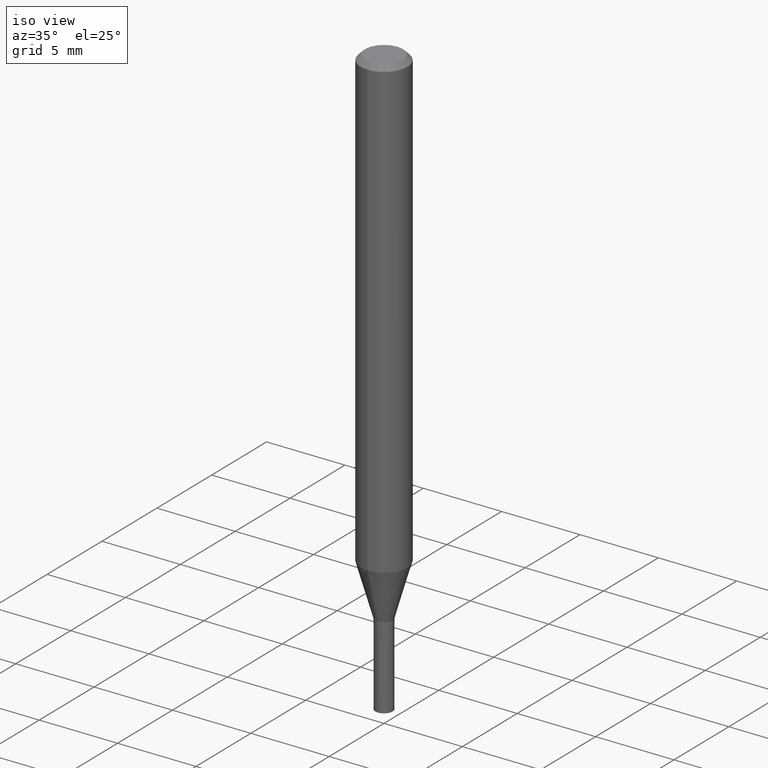
[diagram: clean part render]
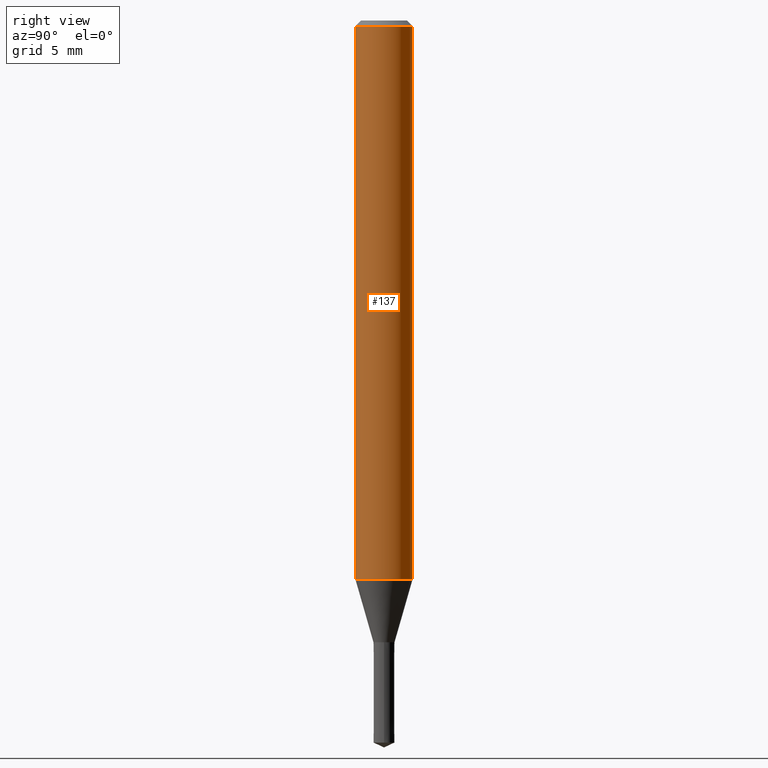
[diagram: tour spotlight — one face highlighted and labeled with its STEP entity id]
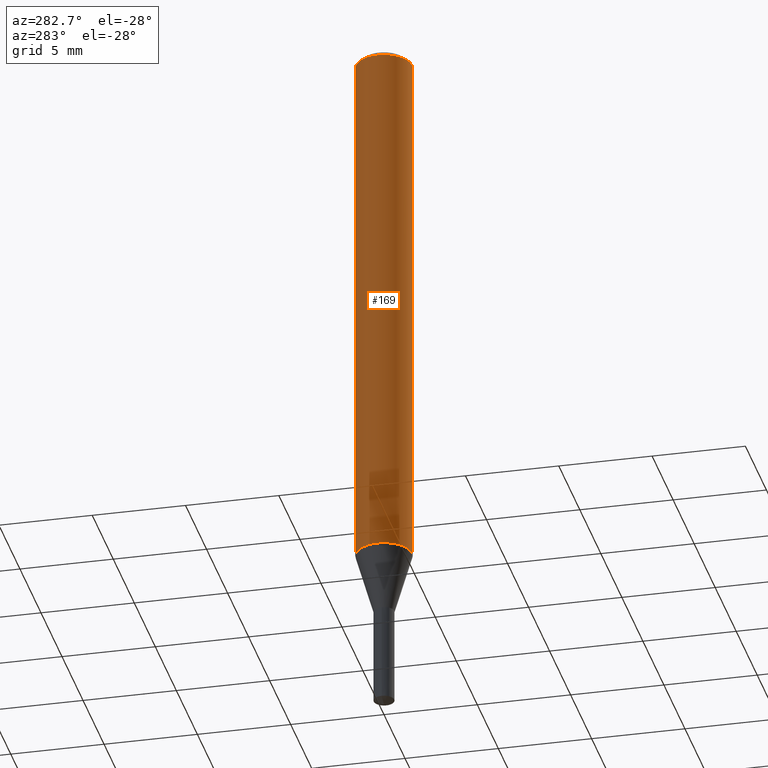
[diagram: tour spotlight — one face highlighted and labeled with its STEP entity id]
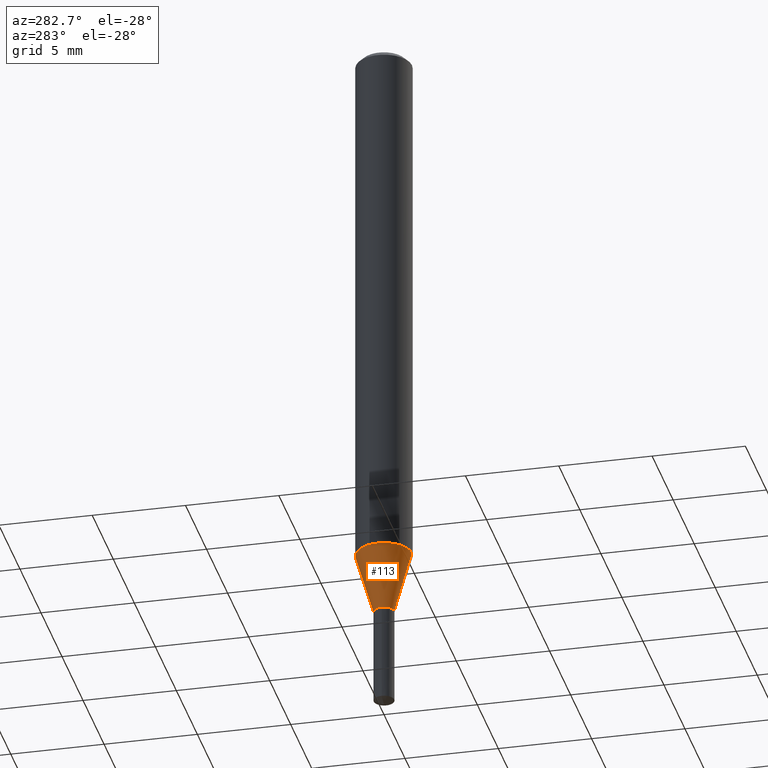
[diagram: tour spotlight — one face highlighted and labeled with its STEP entity id]
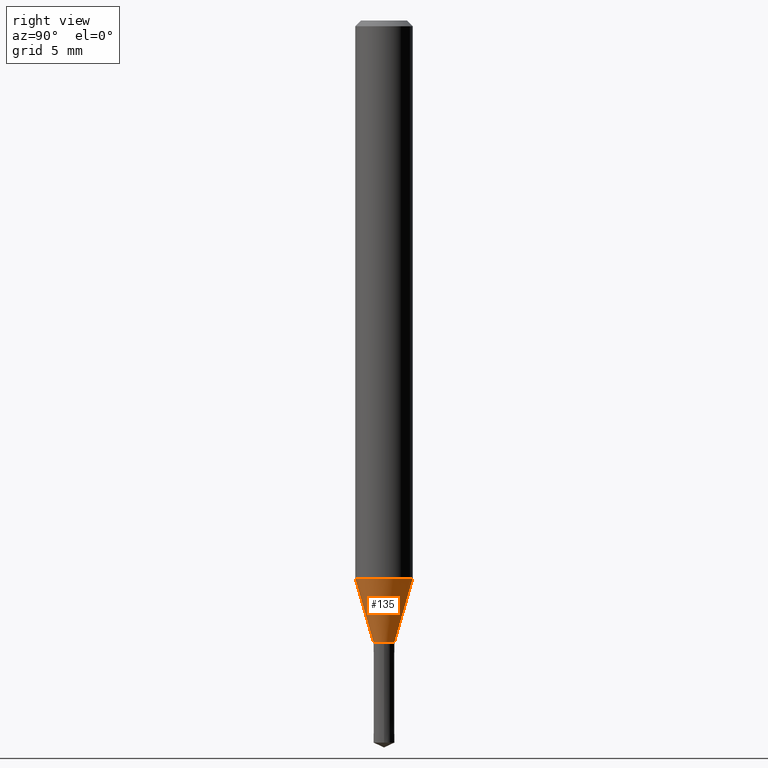
[diagram: tour spotlight — one face highlighted and labeled with its STEP entity id]
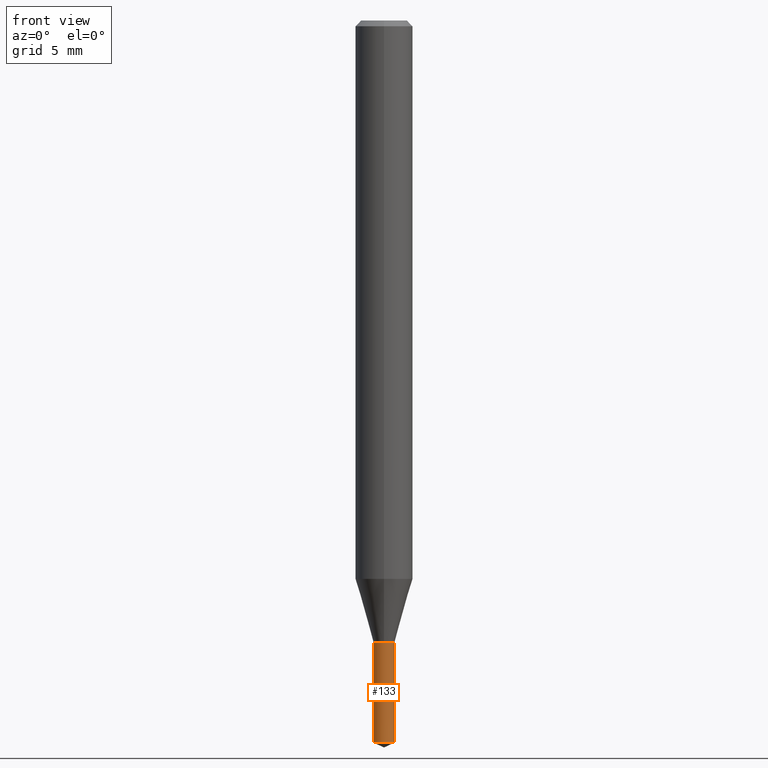
[diagram: tour spotlight — one face highlighted and labeled with its STEP entity id]
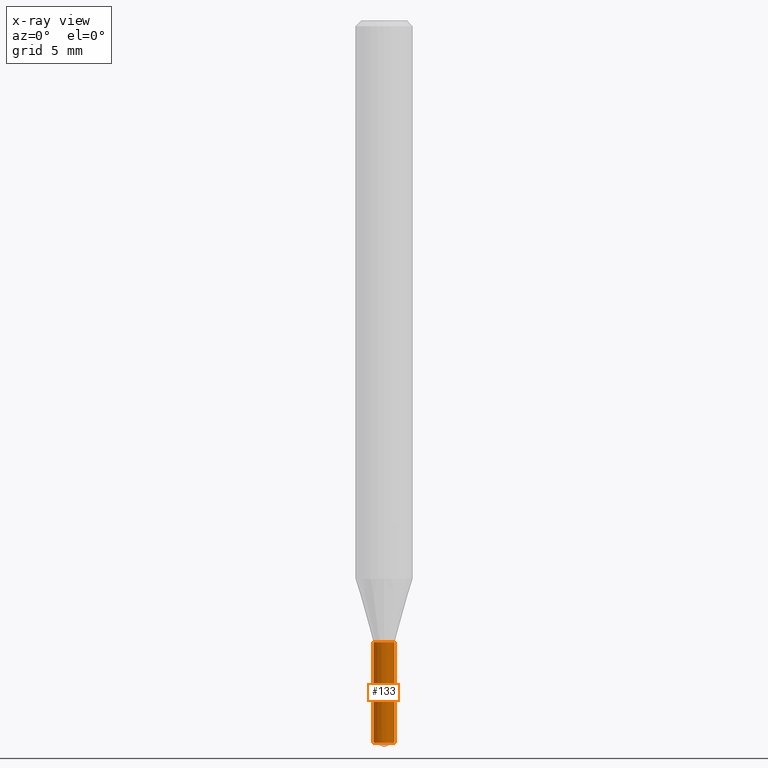
[diagram: x-ray of the same camera — body ghosted, this tour face saturated]
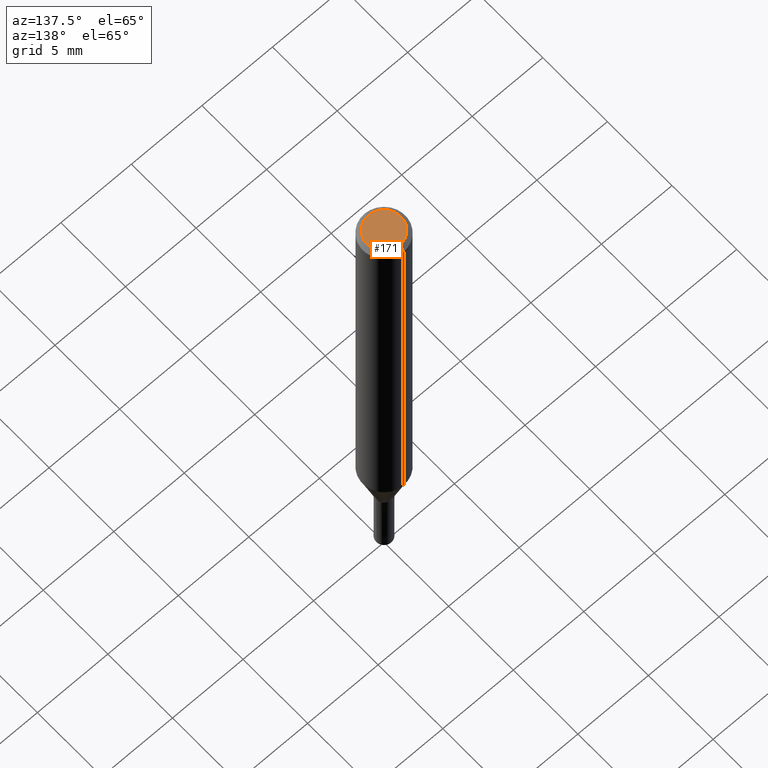
[diagram: tour spotlight — one face highlighted and labeled with its STEP entity id]
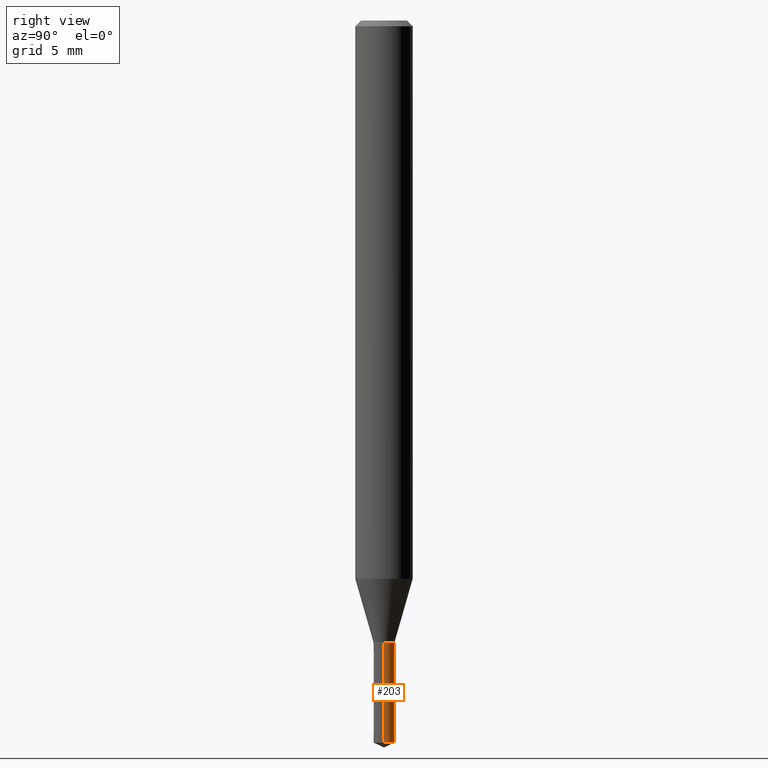
[diagram: tour spotlight — one face highlighted and labeled with its STEP entity id]
A machine part: a face-by-face anatomy tour. The part has 15 B-rep faces; the first image is the clean iso view, then the 7 largest visible faces are spotlighted one at a time (largest first), each with its STEP entity span.

Face 1 — right view, entity #137. In plain terms, the highlighted cylindrical surface (edge-blend (fillet) strip) has radius 1.5 mm, axis along (-0, -0, 1).
Definition (entity closure, byte-faithful):
#95=VERTEX_POINT('',#231);
#99=VERTEX_POINT('',#235);
#107=EDGE_CURVE('',#201,#99,#244,.T.);
#131=VERTEX_POINT('',#272);
#137=ADVANCED_FACE('',(#280),#281,.T.);
#151=EDGE_CURVE('',#95,#131,#295,.T.);
#161=EDGE_CURVE('',#95,#201,#306,.T.);
#191=EDGE_CURVE('',#99,#131,#340,.T.);
#201=VERTEX_POINT('',#350);
#231=CARTESIAN_POINT('',(0.0,1.5,-0.300000000000001));
#235=CARTESIAN_POINT('',(1.83690953073357E-016,-1.5,-29.187));
#244=CIRCLE('',#391,1.5);
#272=CARTESIAN_POINT('',(1.83690953073357E-016,-1.5,-0.300000000000001));
#280=FACE_OUTER_BOUND('',#431,.T.);
#281=CYLINDRICAL_SURFACE('',#432,1.5);
#295=CIRCLE('',#452,1.5);
#306=LINE('',#467,#468);
#340=LINE('',#508,#509);
#350=CARTESIAN_POINT('',(0.0,1.5,-29.187));
#391=AXIS2_PLACEMENT_3D('',#558,#559,#560);
#431=EDGE_LOOP('',(#614,#615,#616,#617));
#432=AXIS2_PLACEMENT_3D('',#618,#619,#620);
#452=AXIS2_PLACEMENT_3D('',#626,#627,#628);
#467=CARTESIAN_POINT('',(-1.83690953073357E-016,1.5,-14.7435));
#468=VECTOR('',#640,1.0);
#508=CARTESIAN_POINT('',(1.83690953073357E-016,-1.5,-14.7435));
#509=VECTOR('',#687,1.0);
#558=CARTESIAN_POINT('',(0.0,0.0,-29.187));
#559=DIRECTION('',(0.0,0.0,-1.0));
#560=DIRECTION('',(0.0,1.0,0.0));
#614=ORIENTED_EDGE('',*,*,#161,.F.);
#615=ORIENTED_EDGE('',*,*,#151,.T.);
#616=ORIENTED_EDGE('',*,*,#191,.F.);
#617=ORIENTED_EDGE('',*,*,#107,.F.);
#618=CARTESIAN_POINT('',(0.0,0.0,-14.7435));
#619=DIRECTION('',(-0.0,-0.0,1.0));
#620=DIRECTION('',(0.0,1.0,0.0));
#626=CARTESIAN_POINT('',(0.0,0.0,-0.300000000000001));
#627=DIRECTION('',(0.0,0.0,-1.0));
#628=DIRECTION('',(0.0,1.0,0.0));
#640=DIRECTION('',(0.0,0.0,-1.0));
#687=DIRECTION('',(-0.0,-0.0,1.0));

Face 2 — auxiliary view, entity #169. In plain terms, the highlighted cylindrical surface (edge-blend (fillet) strip) has radius 1.5 mm, axis along (-0, -0, 1).
Definition (entity closure, byte-faithful):
#95=VERTEX_POINT('',#231);
#99=VERTEX_POINT('',#235);
#131=VERTEX_POINT('',#272);
#141=EDGE_CURVE('',#99,#201,#285,.T.);
#161=EDGE_CURVE('',#95,#201,#306,.T.);
#169=ADVANCED_FACE('',(#315),#316,.T.);
#181=EDGE_CURVE('',#131,#95,#330,.T.);
#191=EDGE_CURVE('',#99,#131,#340,.T.);
#201=VERTEX_POINT('',#350);
#231=CARTESIAN_POINT('',(0.0,1.5,-0.300000000000001));
#235=CARTESIAN_POINT('',(1.83690953073357E-016,-1.5,-29.187));
#272=CARTESIAN_POINT('',(1.83690953073357E-016,-1.5,-0.300000000000001));
#285=CIRCLE('',#437,1.5);
#306=LINE('',#467,#468);
#315=FACE_OUTER_BOUND('',#478,.T.);
#316=CYLINDRICAL_SURFACE('',#479,1.5);
#330=CIRCLE('',#494,1.5);
#340=LINE('',#508,#509);
#350=CARTESIAN_POINT('',(0.0,1.5,-29.187));
#437=AXIS2_PLACEMENT_3D('',#621,#622,#623);
#467=CARTESIAN_POINT('',(-1.83690953073357E-016,1.5,-14.7435));
#468=VECTOR('',#640,1.0);
#478=EDGE_LOOP('',(#650,#651,#652,#653));
#479=AXIS2_PLACEMENT_3D('',#654,#655,#656);
#494=AXIS2_PLACEMENT_3D('',#675,#676,#677);
#508=CARTESIAN_POINT('',(1.83690953073357E-016,-1.5,-14.7435));
#509=VECTOR('',#687,1.0);
#621=CARTESIAN_POINT('',(0.0,0.0,-29.187));
#622=DIRECTION('',(0.0,0.0,-1.0));
#623=DIRECTION('',(0.0,1.0,0.0));
#640=DIRECTION('',(0.0,0.0,-1.0));
#650=ORIENTED_EDGE('',*,*,#161,.T.);
#651=ORIENTED_EDGE('',*,*,#141,.F.);
#652=ORIENTED_EDGE('',*,*,#191,.T.);
#653=ORIENTED_EDGE('',*,*,#181,.T.);
#654=CARTESIAN_POINT('',(0.0,0.0,-14.7435));
#655=DIRECTION('',(-0.0,-0.0,1.0));
#656=DIRECTION('',(0.0,1.0,0.0));
#675=CARTESIAN_POINT('',(0.0,0.0,-0.300000000000001));
#676=DIRECTION('',(0.0,0.0,-1.0));
#677=DIRECTION('',(0.0,1.0,0.0));
#687=DIRECTION('',(-0.0,-0.0,1.0));

Face 3 — auxiliary view, entity #113. In plain terms, the highlighted conical surface has half-angle 16.004 deg.
Definition (entity closure, byte-faithful):
#93=EDGE_CURVE('',#201,#127,#229,.T.);
#97=VERTEX_POINT('',#233);
#99=VERTEX_POINT('',#235);
#113=ADVANCED_FACE('',(#251),#252,.T.);
#119=EDGE_CURVE('',#97,#127,#258,.T.);
#127=VERTEX_POINT('',#267);
#141=EDGE_CURVE('',#99,#201,#285,.T.);
#193=EDGE_CURVE('',#97,#99,#342,.T.);
#201=VERTEX_POINT('',#350);
#229=LINE('',#372,#373);
#233=CARTESIAN_POINT('',(6.73533494602308E-017,-0.55,-32.4991339745962));
#235=CARTESIAN_POINT('',(1.83690953073357E-016,-1.5,-29.187));
#251=FACE_OUTER_BOUND('',#398,.T.);
#252=CONICAL_SURFACE('',#399,1.025,0.279325455519513);
#258=CIRCLE('',#407,0.55);
#267=CARTESIAN_POINT('',(0.0,0.55,-32.4991339745962));
#285=CIRCLE('',#437,1.5);
#342=LINE('',#512,#513);
#350=CARTESIAN_POINT('',(0.0,1.5,-29.187));
#372=CARTESIAN_POINT('',(-1.25522151266794E-016,1.025,-30.8430669872981));
#373=VECTOR('',#543,1.0);
#398=EDGE_LOOP('',(#570,#571,#572,#573));
#399=AXIS2_PLACEMENT_3D('',#574,#575,#576);
#407=AXIS2_PLACEMENT_3D('',#580,#581,#582);
#437=AXIS2_PLACEMENT_3D('',#621,#622,#623);
#512=CARTESIAN_POINT('',(1.25522151266794E-016,-1.025,-30.8430669872981));
#513=VECTOR('',#688,1.0);
#543=DIRECTION('',(3.37632924967849E-017,-0.275707311099597,-0.961241633828992));
#570=ORIENTED_EDGE('',*,*,#93,.T.);
#571=ORIENTED_EDGE('',*,*,#119,.F.);
#572=ORIENTED_EDGE('',*,*,#193,.T.);
#573=ORIENTED_EDGE('',*,*,#141,.T.);
#574=CARTESIAN_POINT('',(0.0,0.0,-30.8430669872981));
#575=DIRECTION('',(-0.0,-0.0,1.0));
#576=DIRECTION('',(0.0,1.0,0.0));
#580=CARTESIAN_POINT('',(0.0,0.0,-32.4991339745962));
#581=DIRECTION('',(0.0,0.0,-1.0));
#582=DIRECTION('',(0.0,1.0,0.0));
#621=CARTESIAN_POINT('',(0.0,0.0,-29.187));
#622=DIRECTION('',(0.0,0.0,-1.0));
#623=DIRECTION('',(0.0,1.0,0.0));
#688=DIRECTION('',(3.37632924967849E-017,-0.275707311099597,0.961241633828992));

Face 4 — right view, entity #135. In plain terms, the highlighted conical surface has half-angle 16.004 deg.
Definition (entity closure, byte-faithful):
#93=EDGE_CURVE('',#201,#127,#229,.T.);
#97=VERTEX_POINT('',#233);
#99=VERTEX_POINT('',#235);
#107=EDGE_CURVE('',#201,#99,#244,.T.);
#127=VERTEX_POINT('',#267);
#135=ADVANCED_FACE('',(#277),#278,.T.);
#193=EDGE_CURVE('',#97,#99,#342,.T.);
#199=EDGE_CURVE('',#127,#97,#348,.T.);
#201=VERTEX_POINT('',#350);
#229=LINE('',#372,#373);
#233=CARTESIAN_POINT('',(6.73533494602308E-017,-0.55,-32.4991339745962));
#235=CARTESIAN_POINT('',(1.83690953073357E-016,-1.5,-29.187));
#244=CIRCLE('',#391,1.5);
#267=CARTESIAN_POINT('',(0.0,0.55,-32.4991339745962));
#277=FACE_OUTER_BOUND('',#428,.T.);
#278=CONICAL_SURFACE('',#429,1.025,0.279325455519513);
#342=LINE('',#512,#513);
#348=CIRCLE('',#524,0.55);
#350=CARTESIAN_POINT('',(0.0,1.5,-29.187));
#372=CARTESIAN_POINT('',(-1.25522151266794E-016,1.025,-30.8430669872981));
#373=VECTOR('',#543,1.0);
#391=AXIS2_PLACEMENT_3D('',#558,#559,#560);
#428=EDGE_LOOP('',(#606,#607,#608,#609));
#429=AXIS2_PLACEMENT_3D('',#610,#611,#612);
#512=CARTESIAN_POINT('',(1.25522151266794E-016,-1.025,-30.8430669872981));
#513=VECTOR('',#688,1.0);
#524=AXIS2_PLACEMENT_3D('',#691,#692,#693);
#543=DIRECTION('',(3.37632924967849E-017,-0.275707311099597,-0.961241633828992));
#558=CARTESIAN_POINT('',(0.0,0.0,-29.187));
#559=DIRECTION('',(0.0,0.0,-1.0));
#560=DIRECTION('',(0.0,1.0,0.0));
#606=ORIENTED_EDGE('',*,*,#93,.F.);
#607=ORIENTED_EDGE('',*,*,#107,.T.);
#608=ORIENTED_EDGE('',*,*,#193,.F.);
#609=ORIENTED_EDGE('',*,*,#199,.F.);
#610=CARTESIAN_POINT('',(0.0,0.0,-30.8430669872981));
#611=DIRECTION('',(-0.0,-0.0,1.0));
#612=DIRECTION('',(0.0,1.0,0.0));
#688=DIRECTION('',(3.37632924967849E-017,-0.275707311099597,0.961241633828992));
#691=CARTESIAN_POINT('',(0.0,0.0,-32.4991339745962));
#692=DIRECTION('',(0.0,0.0,-1.0));
#693=DIRECTION('',(0.0,1.0,0.0));

Face 5 — front view, entity #133. An x-ray twin of the same camera follows (body ghosted, this face saturated) — the face is partly hidden behind the body. In plain terms, the highlighted conical surface has half-angle 0.011 deg.
Definition (entity closure, byte-faithful):
#111=VERTEX_POINT('',#249);
#123=VERTEX_POINT('',#263);
#133=ADVANCED_FACE('',(#274),#275,.T.);
#139=VERTEX_POINT('',#283);
#147=EDGE_CURVE('',#175,#139,#291,.T.);
#155=EDGE_CURVE('',#111,#123,#299,.T.);
#159=EDGE_CURVE('',#111,#139,#304,.T.);
#175=VERTEX_POINT('',#324);
#187=EDGE_CURVE('',#123,#175,#336,.T.);
#249=CARTESIAN_POINT('',(0.55,6.73533494602308E-017,-37.74353079));
#263=CARTESIAN_POINT('',(0.551,6.7475810095613E-017,-32.5));
#274=FACE_OUTER_BOUND('',#425,.T.);
#275=CONICAL_SURFACE('',#426,0.5505,0.000190711188305317);
#283=CARTESIAN_POINT('',(-0.55,0.0,-37.74353079));
#291=LINE('',#446,#447);
#299=LINE('',#457,#458);
#304=CIRCLE('',#464,0.55);
#324=CARTESIAN_POINT('',(-0.551,0.0,-32.5));
#336=CIRCLE('',#502,0.551);
#425=EDGE_LOOP('',(#598,#599,#600,#601));
#426=AXIS2_PLACEMENT_3D('',#602,#603,#604);
#446=CARTESIAN_POINT('',(-0.5505,-6.74145797779219E-017,-35.121765395));
#447=VECTOR('',#625,1.0);
#457=CARTESIAN_POINT('',(0.5505,6.74145797779219E-017,-35.121765395));
#458=VECTOR('',#629,1.0);
#464=AXIS2_PLACEMENT_3D('',#637,#638,#639);
#502=AXIS2_PLACEMENT_3D('',#681,#682,#683);
#598=ORIENTED_EDGE('',*,*,#147,.T.);
#599=ORIENTED_EDGE('',*,*,#159,.F.);
#600=ORIENTED_EDGE('',*,*,#155,.T.);
#601=ORIENTED_EDGE('',*,*,#187,.T.);
#602=CARTESIAN_POINT('',(0.0,0.0,-35.121765395));
#603=DIRECTION('',(-0.0,-0.0,1.0));
#604=DIRECTION('',(-1.0,0.0,0.0));
#625=DIRECTION('',(0.000190711187149265,2.33546131527998E-020,-0.999999981814621));
#629=DIRECTION('',(0.000190711187149265,2.33546131527998E-020,0.999999981814621));
#637=CARTESIAN_POINT('',(0.0,0.0,-37.74353079));
#638=DIRECTION('',(0.0,0.0,-1.0));
#639=DIRECTION('',(-1.0,0.0,0.0));
#681=CARTESIAN_POINT('',(0.0,0.0,-32.5));
#682=DIRECTION('',(0.0,0.0,-1.0));
#683=DIRECTION('',(-1.0,0.0,0.0));

Face 6 — auxiliary view, entity #171. In plain terms, the highlighted planar face has unit normal (-0, 0, 1).
Definition (entity closure, byte-faithful):
#105=EDGE_CURVE('',#117,#153,#242,.T.);
#117=VERTEX_POINT('',#256);
#153=VERTEX_POINT('',#297);
#171=ADVANCED_FACE('',(#318),#319,.T.);
#183=EDGE_CURVE('',#153,#117,#332,.T.);
#242=CIRCLE('',#388,1.2);
#256=CARTESIAN_POINT('',(1.46952762458685E-016,-1.2,0.0));
#297=CARTESIAN_POINT('',(0.0,1.2,0.0));
#318=FACE_OUTER_BOUND('',#481,.T.);
#319=PLANE('',#482);
#332=CIRCLE('',#497,1.2);
#388=AXIS2_PLACEMENT_3D('',#555,#556,#557);
#481=EDGE_LOOP('',(#658,#659));
#482=AXIS2_PLACEMENT_3D('',#660,#661,#662);
#497=AXIS2_PLACEMENT_3D('',#678,#679,#680);
#555=CARTESIAN_POINT('',(0.0,0.0,0.0));
#556=DIRECTION('',(0.0,0.0,-1.0));
#557=DIRECTION('',(0.0,1.0,0.0));
#658=ORIENTED_EDGE('',*,*,#183,.F.);
#659=ORIENTED_EDGE('',*,*,#105,.F.);
#660=CARTESIAN_POINT('',(0.0,0.6,0.0));
#661=DIRECTION('',(-0.0,0.0,1.0));
#662=DIRECTION('',(0.0,-1.0,0.0));
#678=CARTESIAN_POINT('',(0.0,0.0,0.0));
#679=DIRECTION('',(0.0,0.0,-1.0));
#680=DIRECTION('',(0.0,1.0,0.0));

Face 7 — right view, entity #203. In plain terms, the highlighted conical surface has half-angle 0.011 deg.
Definition (entity closure, byte-faithful):
#103=EDGE_CURVE('',#175,#123,#240,.T.);
#111=VERTEX_POINT('',#249);
#123=VERTEX_POINT('',#263);
#139=VERTEX_POINT('',#283);
#147=EDGE_CURVE('',#175,#139,#291,.T.);
#155=EDGE_CURVE('',#111,#123,#299,.T.);
#175=VERTEX_POINT('',#324);
#177=EDGE_CURVE('',#139,#111,#326,.T.);
#203=ADVANCED_FACE('',(#352),#353,.T.);
#240=CIRCLE('',#385,0.551);
#249=CARTESIAN_POINT('',(0.55,6.73533494602308E-017,-37.74353079));
#263=CARTESIAN_POINT('',(0.551,6.7475810095613E-017,-32.5));
#283=CARTESIAN_POINT('',(-0.55,0.0,-37.74353079));
#291=LINE('',#446,#447);
#299=LINE('',#457,#458);
#324=CARTESIAN_POINT('',(-0.551,0.0,-32.5));
#326=CIRCLE('',#490,0.55);
#352=FACE_OUTER_BOUND('',#528,.T.);
#353=CONICAL_SURFACE('',#529,0.5505,0.000190711188305317);
#385=AXIS2_PLACEMENT_3D('',#552,#553,#554);
#446=CARTESIAN_POINT('',(-0.5505,-6.74145797779219E-017,-35.121765395));
#447=VECTOR('',#625,1.0);
#457=CARTESIAN_POINT('',(0.5505,6.74145797779219E-017,-35.121765395));
#458=VECTOR('',#629,1.0);
#490=AXIS2_PLACEMENT_3D('',#671,#672,#673);
#528=EDGE_LOOP('',(#695,#696,#697,#698));
#529=AXIS2_PLACEMENT_3D('',#699,#700,#701);
#552=CARTESIAN_POINT('',(0.0,0.0,-32.5));
#553=DIRECTION('',(0.0,0.0,-1.0));
#554=DIRECTION('',(-1.0,0.0,0.0));
#625=DIRECTION('',(0.000190711187149265,2.33546131527998E-020,-0.999999981814621));
#629=DIRECTION('',(0.000190711187149265,2.33546131527998E-020,0.999999981814621));
#671=CARTESIAN_POINT('',(0.0,0.0,-37.74353079));
#672=DIRECTION('',(0.0,0.0,-1.0));
#673=DIRECTION('',(-1.0,0.0,0.0));
#695=ORIENTED_EDGE('',*,*,#147,.F.);
#696=ORIENTED_EDGE('',*,*,#103,.T.);
#697=ORIENTED_EDGE('',*,*,#155,.F.);
#698=ORIENTED_EDGE('',*,*,#177,.F.);
#699=CARTESIAN_POINT('',(0.0,0.0,-35.121765395));
#700=DIRECTION('',(-0.0,-0.0,1.0));
#701=DIRECTION('',(-1.0,0.0,0.0));